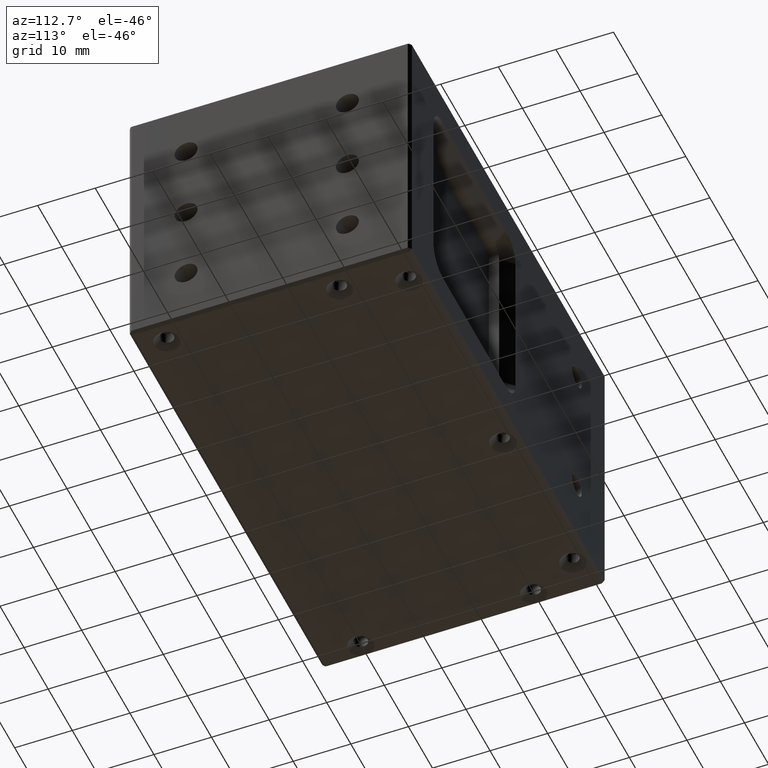
[diagram: clean part render]
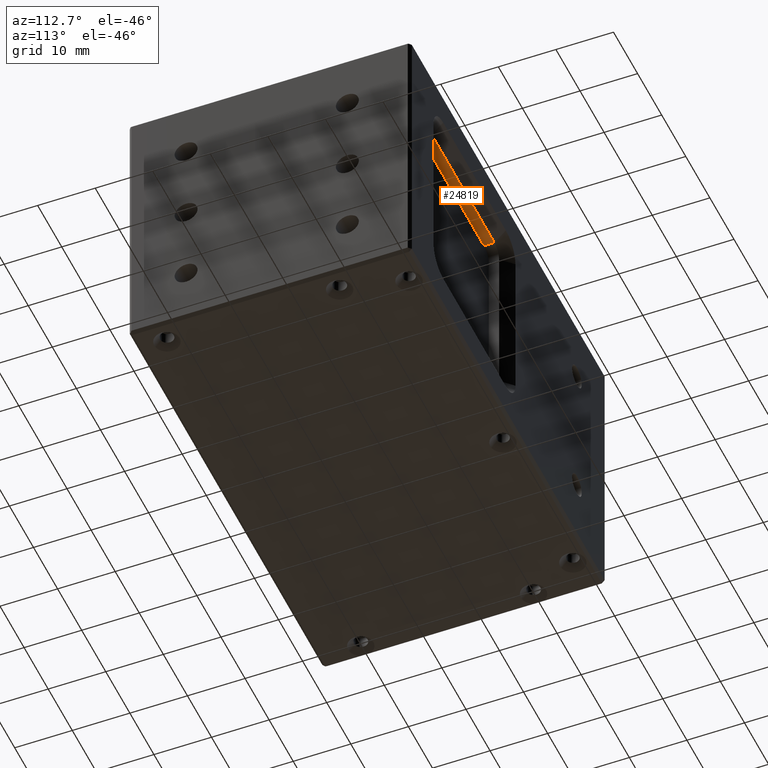
[diagram: same view with one face highlighted and labeled with its STEP entity id]
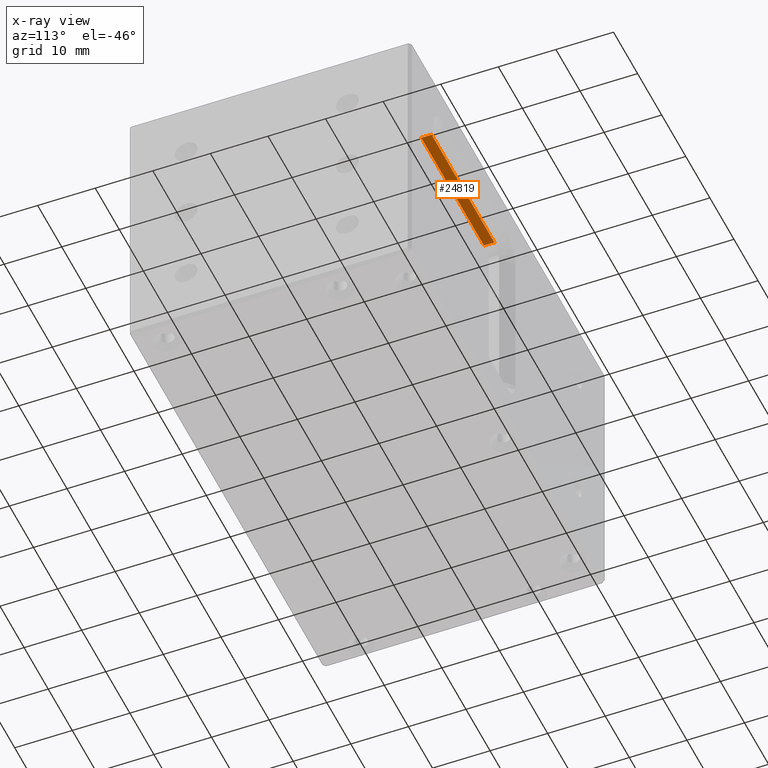
[diagram: x-ray of the same camera — body ghosted, the highlighted face saturated]
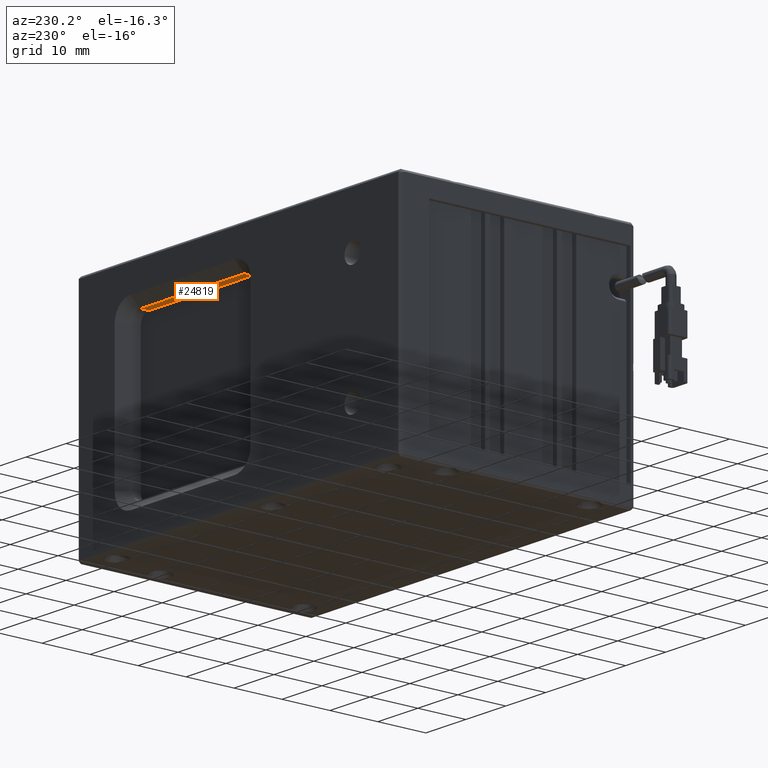
[diagram: same view with one face highlighted and labeled with its STEP entity id]
A machine part, auxiliary view. The second image highlights one B-rep face of the part: STEP entity #24819.
The next image is the same camera in x-ray: the body ghosted, the highlighted face saturated — about 3% of this face is hidden behind the body in this view.
A second angle (auxiliary view) of the same face is appended — the face is thin or edge-on in the first view.
In plain terms, the highlighted planar face has unit normal (-0, 0, 1).
Its self-contained STEP definition (entity closure, byte-faithful):
#226 = CARTESIAN_POINT ( 'NONE',  ( 22.95909811852031300, 36.94734783201975900, -4.773525325019178900E-012 ) ) ;
#521 = ORIENTED_EDGE ( 'NONE', *, *, #10469, .F. ) ;
#2056 = DIRECTION ( 'NONE',  ( 0.0000000000000000000, 1.000000000000000000, 0.0000000000000000000 ) ) ;
#2160 = AXIS2_PLACEMENT_3D ( 'NONE', #21427, #8006, #23680 ) ;
#2660 = VERTEX_POINT ( 'NONE', #226 ) ;
#3779 = CARTESIAN_POINT ( 'NONE',  ( 22.95909811852034500, 38.74734783201417800, -5.311611475091945800E-012 ) ) ;
#3846 = VECTOR ( 'NONE', #26978, 1000.000000000000000 ) ;
#5596 = ORIENTED_EDGE ( 'NONE', *, *, #24550, .F. ) ;
#7312 = VECTOR ( 'NONE', #19752, 1000.000000000000000 ) ;
#7407 = CARTESIAN_POINT ( 'NONE',  ( -3.040901881483964300, 36.94734783201987900, -4.544921845742222500E-012 ) ) ;
#8006 = DIRECTION ( 'NONE',  ( -3.643804767012443100E-017, 0.0000000000000000000, 1.000000000000000000 ) ) ;
#9405 = VECTOR ( 'NONE', #2056, 1000.000000000000000 ) ;
#10119 = LINE ( 'NONE', #29030, #9405 ) ;
#10469 = EDGE_CURVE ( 'NONE', #26189, #11825, #19320, .T. ) ;
#11260 = DIRECTION ( 'NONE',  ( -0.0000000000000000000, -1.000000000000000000, -0.0000000000000000000 ) ) ;
#11825 = VERTEX_POINT ( 'NONE', #7407 ) ;
#13284 = LINE ( 'NONE', #17468, #7312 ) ;
#13531 = CARTESIAN_POINT ( 'NONE',  ( -3.040901881483927500, 37.84734783202000600, -4.544868184425211300E-012 ) ) ;
#14580 = ORIENTED_EDGE ( 'NONE', *, *, #24016, .F. ) ;
#15480 = ORIENTED_EDGE ( 'NONE', *, *, #20020, .T. ) ;
#15734 = CARTESIAN_POINT ( 'NONE',  ( 9.959098118517999900, 36.94734783202000700, -4.544394489805499700E-012 ) ) ;
#17043 = FACE_OUTER_BOUND ( 'NONE', #17521, .T. ) ;
#17468 = CARTESIAN_POINT ( 'NONE',  ( 9.959098118517999900, 38.74734783201416400, -4.543877752359593000E-012 ) ) ;
#17521 = EDGE_LOOP ( 'NONE', ( #5596, #14580, #521, #15480 ) ) ;
#19320 = LINE ( 'NONE', #13531, #24603 ) ;
#19752 = DIRECTION ( 'NONE',  ( 1.000000000000000000, 0.0000000000000000000, 0.0000000000000000000 ) ) ;
#20020 = EDGE_CURVE ( 'NONE', #26189, #21476, #13284, .T. ) ;
#21427 = CARTESIAN_POINT ( 'NONE',  ( -3.560901881484000300, 36.83762162731000700, -4.544887132209999400E-012 ) ) ;
#21476 = VERTEX_POINT ( 'NONE', #3779 ) ;
#23581 = PLANE ( 'NONE',  #2160 ) ;
#23680 = DIRECTION ( 'NONE',  ( 1.000000000000000000, 0.0000000000000000000, 3.643804767012443100E-017 ) ) ;
#24016 = EDGE_CURVE ( 'NONE', #11825, #2660, #27750, .T. ) ;
#24550 = EDGE_CURVE ( 'NONE', #2660, #21476, #10119, .T. ) ;
#24603 = VECTOR ( 'NONE', #11260, 1000.000000000000000 ) ;
#24819 = ADVANCED_FACE ( 'NONE', ( #17043 ), #23581, .F. ) ;
#26189 = VERTEX_POINT ( 'NONE', #26397 ) ;
#26397 = CARTESIAN_POINT ( 'NONE',  ( -3.040901881483842700, 38.74734783201416400, -4.875843791311515500E-012 ) ) ;
#26978 = DIRECTION ( 'NONE',  ( 1.000000000000000000, 0.0000000000000000000, 3.643804767012443100E-017 ) ) ;
#27750 = LINE ( 'NONE', #15734, #3846 ) ;
#29030 = CARTESIAN_POINT ( 'NONE',  ( 22.95909811852062200, 37.84734783202000600, -5.002942504717111700E-012 ) ) ;